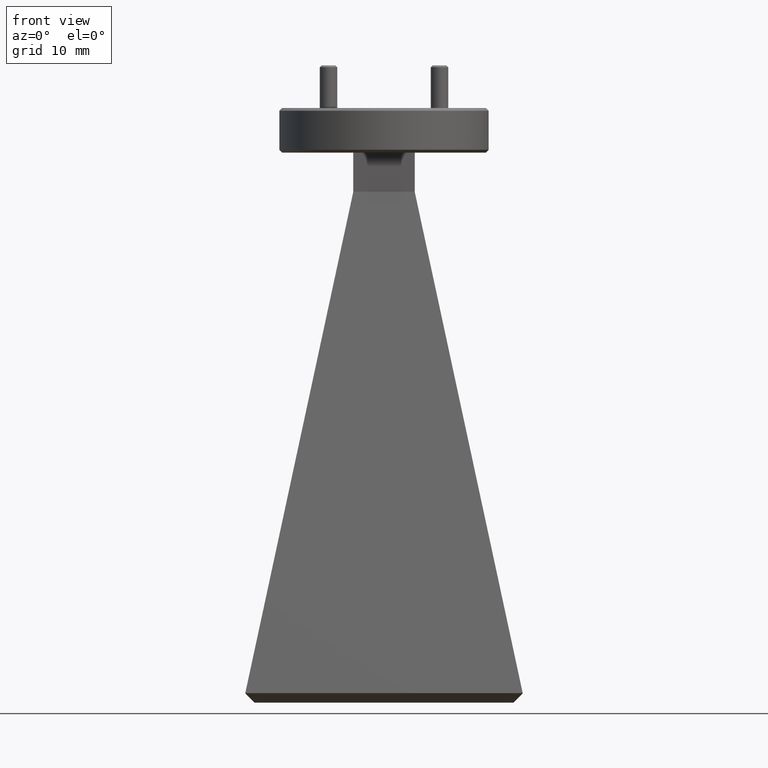
[diagram: clean part render]
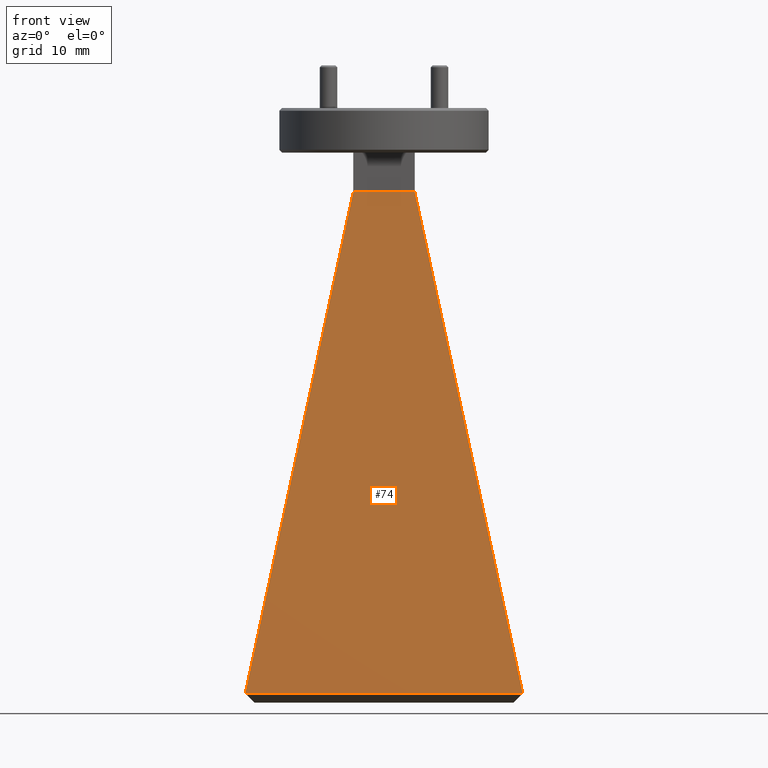
[diagram: same view with one face highlighted and labeled with its STEP entity id]
A machine part, front view. The second image highlights one B-rep face of the part: STEP entity #74.
In plain terms, the highlighted planar face has unit normal (0, -0.9842, 0.1771).
Its self-contained STEP definition (entity closure, byte-faithful):
#74 = ADVANCED_FACE ( 'NONE', ( #1074 ), #1274, .T. ) ;
#92 = LINE ( 'NONE', #658, #2357 ) ;
#112 = ORIENTED_EDGE ( 'NONE', *, *, #935, .T. ) ;
#182 = ORIENTED_EDGE ( 'NONE', *, *, #1295, .T. ) ;
#249 = CARTESIAN_POINT ( 'NONE',  ( 4.067794619213686540E-18, -0.03004855892645269880, 0.005406600938286971678 ) ) ;
#255 = EDGE_CURVE ( 'NONE', #2592, #1487, #2048, .T. ) ;
#268 = DIRECTION ( 'NONE',  ( 1.332345199464077949E-16, -0.9841955404378692762, 0.1770851156427624140 ) ) ;
#436 = CARTESIAN_POINT ( 'NONE',  ( -0.1100000000000000006, -0.08499999999999999223, -0.2999999999999999889 ) ) ;
#472 = EDGE_CURVE ( 'NONE', #2221, #2264, #1381, .T. ) ;
#475 = LINE ( 'NONE', #634, #884 ) ;
#603 = ORIENTED_EDGE ( 'NONE', *, *, #472, .F. ) ;
#634 = CARTESIAN_POINT ( 'NONE',  ( 4.067794619213686540E-18, -0.08499999999999995060, -0.3000000000000000999 ) ) ;
#650 = DIRECTION ( 'NONE',  ( 0.000000000000000000, -0.1770851156427624140, -0.9841955404378692762 ) ) ;
#658 = CARTESIAN_POINT ( 'NONE',  ( 5.528680272263172408E-17, -0.4084003507992483573, -2.097379649200751484 ) ) ;
#822 = ORIENTED_EDGE ( 'NONE', *, *, #255, .T. ) ;
#884 = VECTOR ( 'NONE', #1450, 39.37007874015748143 ) ;
#935 = EDGE_CURVE ( 'NONE', #2221, #2592, #475, .T. ) ;
#1074 = FACE_OUTER_BOUND ( 'NONE', #2584, .T. ) ;
#1274 = PLANE ( 'NONE',  #2307 ) ;
#1295 = EDGE_CURVE ( 'NONE', #1487, #2264, #92, .T. ) ;
#1342 = VECTOR ( 'NONE', #1829, 39.37007874015748143 ) ;
#1371 = DIRECTION ( 'NONE',  ( 0.2074080050761602512, -0.1732343160268562388, -0.9627937428032210532 ) ) ;
#1381 = LINE ( 'NONE', #2365, #2308 ) ;
#1394 = CARTESIAN_POINT ( 'NONE',  ( -0.1100000000000000561, -0.08499999999999997835, -0.3000000000000000444 ) ) ;
#1450 = DIRECTION ( 'NONE',  ( -1.000000000000000000, -1.311288203636348644E-16, 2.359385037231755538E-17 ) ) ;
#1474 = CARTESIAN_POINT ( 'NONE',  ( 0.1099999999999999867, -0.08499999999999997835, -0.3000000000000000999 ) ) ;
#1487 = VERTEX_POINT ( 'NONE', #2278 ) ;
#1507 = DIRECTION ( 'NONE',  ( 1.000000000000000000, 1.353740333827682459E-16, 3.032786659938673092E-33 ) ) ;
#1829 = DIRECTION ( 'NONE',  ( -0.2074080050761602234, -0.1732343160268563220, -0.9627937428032210532 ) ) ;
#2048 = LINE ( 'NONE', #436, #1342 ) ;
#2186 = CARTESIAN_POINT ( 'NONE',  ( 0.4971970816094190004, -0.4084003507992484683, -2.097379649200751928 ) ) ;
#2221 = VERTEX_POINT ( 'NONE', #1474 ) ;
#2264 = VERTEX_POINT ( 'NONE', #2186 ) ;
#2278 = CARTESIAN_POINT ( 'NONE',  ( -0.4971970816094188339, -0.4084003507992485793, -2.097379649200751928 ) ) ;
#2307 = AXIS2_PLACEMENT_3D ( 'NONE', #249, #268, #650 ) ;
#2308 = VECTOR ( 'NONE', #1371, 39.37007874015748143 ) ;
#2357 = VECTOR ( 'NONE', #1507, 39.37007874015748143 ) ;
#2365 = CARTESIAN_POINT ( 'NONE',  ( 0.1100000000000000006, -0.08499999999999999223, -0.2999999999999999889 ) ) ;
#2584 = EDGE_LOOP ( 'NONE', ( #822, #182, #603, #112 ) ) ;
#2592 = VERTEX_POINT ( 'NONE', #1394 ) ;